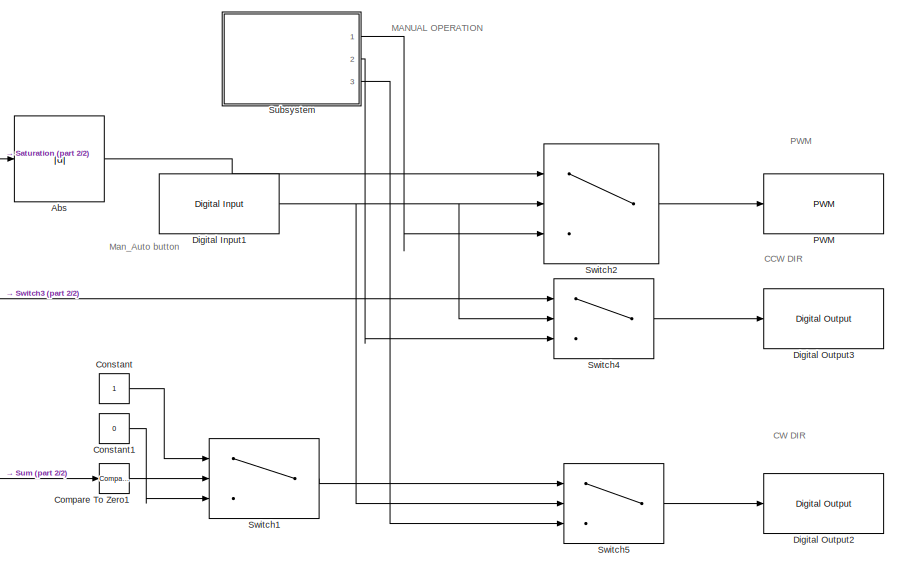
[diagram: root canvas - part 1/2, middle right region]
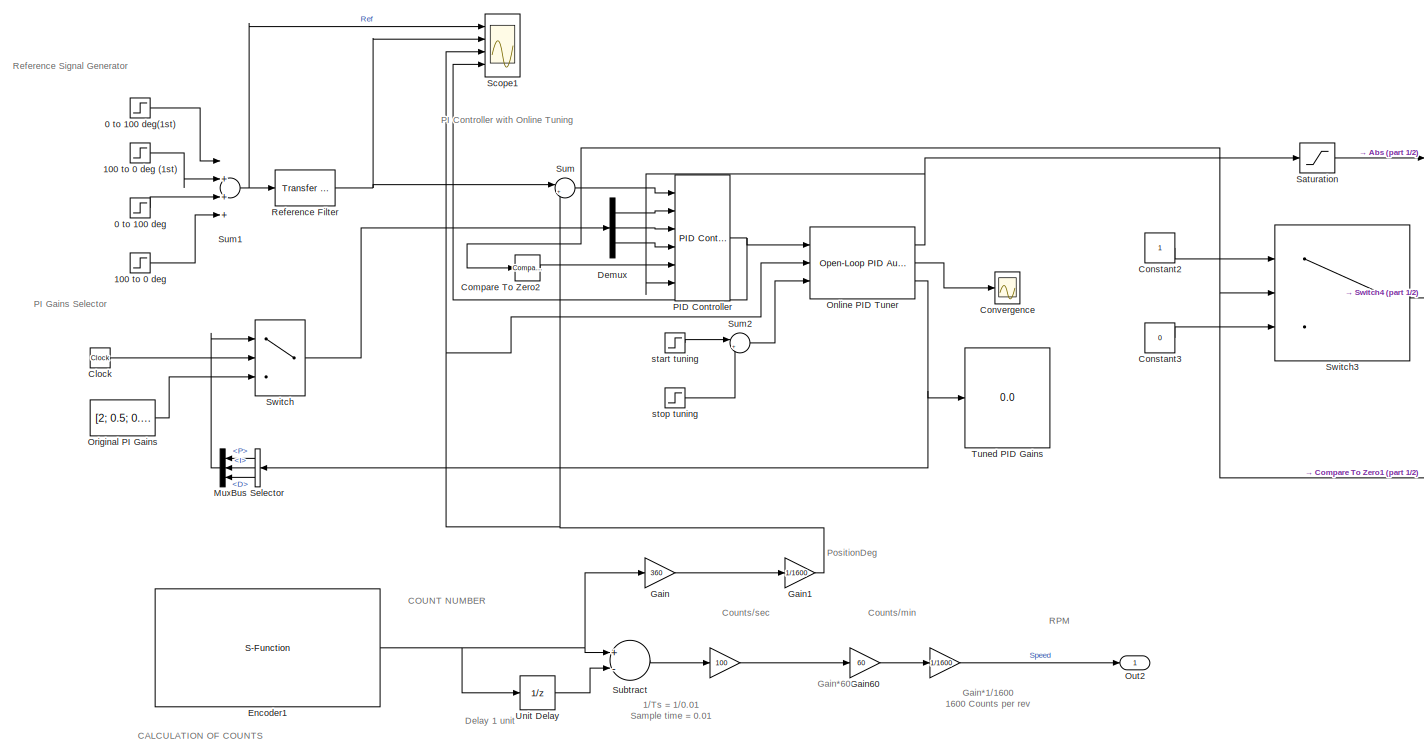
[diagram: root canvas - part 2/2, left side, full height]
MODEL slx_6c0a7374f1ec
KIND model
CONFIG AbsTol = auto
CONFIG EnableMultiTasking = off
CONFIG FixedStep = auto
CONFIG MaxStep = auto
CONFIG MinStep = auto
CONFIG RelTol = 1e-3
CONFIG SampleTimeConstraint = Unconstrained
CONFIG Solver = FixedStepAuto
CONFIG SolverName = FixedStepAuto
CONFIG StartTime = 0.0
CONFIG StopTime = 100
WORKSPACE source: MAT-file member
WORKSPACE p = [-7.82997288351e-05 0.181210895977 -0.072497134344 0.000486358314052 0.0361674637937]
BLOCK [Gain]  
  Gain = 1/1600
  OutDataTypeStr = double
  ParamDataTypeStr = Inherit: Inherit via internal rule
  SaturateOnIntegerOverflow = off
BLOCK [Step] 0 to 100 deg 
  After = 100
  SampleTime = 0
  Time = 60
BLOCK [Step] 0 to 100 deg(1st)
  After = 100
  SampleTime = 0
  Time = 2
BLOCK [Step] 100 to 0 deg
  After = -100
  SampleTime = 0
  Time = 80
BLOCK [Step] 100 to 0 deg (1st)
  After = -100
  SampleTime = 0
  Time = 20
BLOCK [Abs] Abs
  SaturateOnIntegerOverflow = off
BLOCK [BusSelector] Bus Selector
  OutputAsBus = off
  OutputSignals = P,I,D
  Ports = [1, 3]
BLOCK [Clock] Clock
BLOCK [Reference] Compare To Zero1  REF=simulink/Logic and Bit
Operations/Compare
To Zero
  Ports = [1, 1]
  SourceBlock = simulink/Logic and Bit\nOperations/Compare\nTo Zero
  SourceProductBaseCode = SL
  SourceProductName = Simulink
  SourceType = Compare To Zero
BLOCK [Reference] Compare To Zero2  REF=simulink/Logic and Bit
Operations/Compare
To Zero
  Ports = [1, 1]
  SourceBlock = simulink/Logic and Bit\nOperations/Compare\nTo Zero
  SourceProductBaseCode = SL
  SourceProductName = Simulink
  SourceType = Compare To Zero
BLOCK [Constant] Constant
BLOCK [Constant] Constant1
  Value = 0
BLOCK [Constant] Constant2
BLOCK [Constant] Constant3
  Value = 0
BLOCK [Scope] Convergence
  Floating = off
  NumInputPorts = 1
  Ports = [1]
  ScopeSpecificationString = Simulink.scopes.TimeScopeBlockCfg('CurrentConfiguration', extmgr.ConfigurationSet(extmgr.Configuration('Core','General UI',true),extmgr.Configuration('Core','Source UI',true),extmgr.Configuration('Sources','WiredSimulink',true),extmgr.Configuration('Visuals','Time Domain',true,'SerializedDisplays',{struct('MinYLimReal','-12.4989','MaxYLimReal','112.49007','YLabelReal','','MinYLimMag','0.00000','Ma...<+1373ch>
BLOCK [Demux] Demux
  DisplayOption = bar
  Outputs = 3
  Ports = [1, 3]
BLOCK [Reference] Digital Input1  REF=arduinolib/Digital Input
  Ports = [0, 1]
  SourceBlock = arduinolib/Digital Input
  SourceProductBaseCode = ARDUINO
  SourceProductName = Simulink Support Package for Arduino Hardware
  SourceType = Arduino Digital Input
BLOCK [Reference] Digital Output2  REF=arduinolib/Digital Output
  Ports = [1]
  SourceBlock = arduinolib/Digital Output
  SourceProductBaseCode = ARDUINO
  SourceProductName = Simulink Support Package for Arduino Hardware
  SourceType = Arduino Digital Output
BLOCK [Reference] Digital Output3  REF=arduinolib/Digital Output
  Ports = [1]
  SourceBlock = arduinolib/Digital Output
  SourceProductBaseCode = ARDUINO
  SourceProductName = Simulink Support Package for Arduino Hardware
  SourceType = Arduino Digital Output
BLOCK [S-Function] Encoder1
  CopyFcn = set_param(gcbh,'LinkStatus','none')
  EnableBusSupport = off
  FunctionName = sfcn_encoder
  InitFcn = try, set_param(gcb,'FunctionName','sfcn_encoder'), end
  OpenFcn = sfunctionwizard(gcbh)
  Parameters = uint8(0),uint8(2),uint8(3)
  Ports = [0, 1]
  PreSaveFcn = try, set_param(gcb,'FunctionName','sfcn_encoder'), end
  SFcnIsStateOwnerBlock = off
  SFunctionDeploymentMode = off
  SFunctionModules = sfcn_encoder_wrapper
BLOCK [Gain] Gain
  Gain = 360
  OutDataTypeStr = double
  ParamDataTypeStr = double
  SaturateOnIntegerOverflow = off
BLOCK [Gain] Gain1
  Gain = 1/1600
  OutDataTypeStr = double
  ParamDataTypeStr = double
  SaturateOnIntegerOverflow = off
BLOCK [Gain] Gain60
  Gain = 60
  OutDataTypeStr = double
  ParamDataTypeStr = Inherit: Inherit via internal rule
  SaturateOnIntegerOverflow = off
BLOCK [Mux] Mux
  DisplayOption = bar
  Inputs = 3
  Ports = [3, 1]
BLOCK [Reference] Online PID Tuner  REF=slctrlblks/Open-Loop PID Autotuner
  Ports = [3, 3]
  SourceBlock = slctrlblks/Open-Loop PID Autotuner
  SourceProductBaseCode = SD
  SourceProductName = Simulink Control Design
  SourceType = OnlinePIDTuner
BLOCK [Constant] Original PI Gains
  Value = [2; 0.5; 0.1]
BLOCK [Outport] Out2
  IconDisplay = Port number
  SignalName = speedRPM
BLOCK [Reference] PID Controller  REF=simulink/Continuous/PID Controller
  Ports = [6, 1]
  SourceBlock = simulink/Continuous/PID Controller
  SourceProductBaseCode = SL
  SourceProductName = Simulink
  SourceType = PID 1dof
  Tag = PID1
BLOCK [Reference] PWM  REF=arduinolib/PWM
  Ports = [1]
  SourceBlock = arduinolib/PWM
  SourceProductBaseCode = ARDUINO
  SourceProductName = Simulink Support Package for Arduino Hardware
  SourceType = Arduino PWM
BLOCK [Reference] Reference Filter  REF=simulink_extras/Additional
Linear/Transfer Fcn
(with initial outputs)
  Ports = [1, 1]
  SourceBlock = simulink_extras/Additional\nLinear/Transfer Fcn\n(with initial outputs)
  SourceProductBaseCode = SL
  SourceProductName = Simulink
  SourceType = Transfer Function with Initial Outputs
BLOCK [Saturate] Saturation
  InputPortMap = u0
  LowerLimit = -255
  Ports = [1, 1]
  UpperLimit = 255
BLOCK [Scope] Scope1
  Floating = off
  NumInputPorts = 4
  Ports = [4]
  ScopeSpecificationString = Simulink.scopes.TimeScopeBlockCfg('CurrentConfiguration', extmgr.ConfigurationSet(extmgr.Configuration('Core','General UI',true),extmgr.Configuration('Core','Source UI',true),extmgr.Configuration('Sources','WiredSimulink',true,'DataLoggingVariableName','ScopeData1'),extmgr.Configuration('Visuals','Time Domain',true,'SerializedDisplays',{struct('MinYLimReal','-713.03435','MaxYLimReal','362.55937','...<+1513ch>
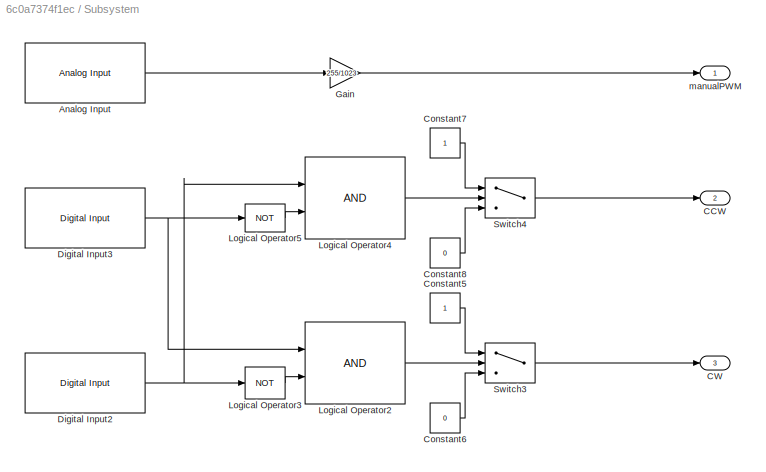
BLOCK [SubSystem] Subsystem
  Ports = [0, 3]
  RequestExecContextInheritance = off
BLOCK [Reference] Subsystem/Analog Input  REF=arduinolib/Analog Input
  Ports = [0, 1]
  SourceBlock = arduinolib/Analog Input
  SourceProductBaseCode = ARDUINO
  SourceProductName = Simulink Support Package for Arduino Hardware
  SourceType = Arduino Analog Input
BLOCK [Outport] Subsystem/CCW
  IconDisplay = Port number
  Port = 2
BLOCK [Outport] Subsystem/CW
  IconDisplay = Port number
  Port = 3
BLOCK [Constant] Subsystem/Constant5
BLOCK [Constant] Subsystem/Constant6
  Value = 0
BLOCK [Constant] Subsystem/Constant7
BLOCK [Constant] Subsystem/Constant8
  Value = 0
BLOCK [Reference] Subsystem/Digital Input2  REF=arduinolib/Digital Input
  Ports = [0, 1]
  SourceBlock = arduinolib/Digital Input
  SourceProductBaseCode = ARDUINO
  SourceProductName = Simulink Support Package for Arduino Hardware
  SourceType = Arduino Digital Input
BLOCK [Reference] Subsystem/Digital Input3  REF=arduinolib/Digital Input
  Ports = [0, 1]
  SourceBlock = arduinolib/Digital Input
  SourceProductBaseCode = ARDUINO
  SourceProductName = Simulink Support Package for Arduino Hardware
  SourceType = Arduino Digital Input
BLOCK [Gain] Subsystem/Gain
  Gain = 255/1023
  OutDataTypeStr = Inherit: Inherit via internal rule
  ParamDataTypeStr = Inherit: Inherit via internal rule
  SaturateOnIntegerOverflow = off
BLOCK [Logic] Subsystem/Logical Operator2
  AllPortsSameDT = off
  OutDataTypeStr = boolean
  Ports = [2, 1]
BLOCK [Logic] Subsystem/Logical Operator3
  AllPortsSameDT = off
  Operator = NOT
  OutDataTypeStr = boolean
  Ports = [1, 1]
BLOCK [Logic] Subsystem/Logical Operator4
  AllPortsSameDT = off
  OutDataTypeStr = boolean
  Ports = [2, 1]
BLOCK [Logic] Subsystem/Logical Operator5
  AllPortsSameDT = off
  Operator = NOT
  OutDataTypeStr = boolean
  Ports = [1, 1]
BLOCK [Switch] Subsystem/Switch3
  Criteria = u2 > Threshold
  InputSameDT = off
  SaturateOnIntegerOverflow = off
BLOCK [Switch] Subsystem/Switch4
  Criteria = u2 > Threshold
  InputSameDT = off
  SaturateOnIntegerOverflow = off
BLOCK [Outport] Subsystem/manualPWM
  IconDisplay = Port number
BLOCK [Sum] Subtract
  InputSameDT = off
  Inputs = +-
  OutDataTypeStr = Inherit: Inherit via internal rule
  Ports = [2, 1]
  SaturateOnIntegerOverflow = off
BLOCK [Sum] Sum
  IconShape = round
  InputSameDT = off
  Inputs = |+-
  OutDataTypeStr = Inherit: Inherit via internal rule
  Ports = [2, 1]
  SaturateOnIntegerOverflow = off
BLOCK [Sum] Sum1
  InputSameDT = off
  Inputs = |++++
  OutDataTypeStr = Inherit: Inherit via internal rule
  Ports = [4, 1]
  SaturateOnIntegerOverflow = off
BLOCK [Sum] Sum2
  IconShape = round
  InputSameDT = off
  Inputs = |++
  OutDataTypeStr = Inherit: Inherit via internal rule
  Ports = [2, 1]
  SaturateOnIntegerOverflow = off
BLOCK [Switch] Switch
  Criteria = u2 > Threshold
  InputSameDT = off
  SaturateOnIntegerOverflow = off
  Threshold = 66
BLOCK [Switch] Switch1
  Criteria = u2 > Threshold
  InputSameDT = off
  SaturateOnIntegerOverflow = off
BLOCK [Switch] Switch2
  Criteria = u2 > Threshold
  InputSameDT = off
  SaturateOnIntegerOverflow = off
BLOCK [Switch] Switch3
  Criteria = u2 > Threshold
  InputSameDT = off
  SaturateOnIntegerOverflow = off
BLOCK [Switch] Switch4
  Criteria = u2 > Threshold
  InputSameDT = off
  SaturateOnIntegerOverflow = off
BLOCK [Switch] Switch5
  Criteria = u2 > Threshold
  InputSameDT = off
  SaturateOnIntegerOverflow = off
BLOCK [Display] Tuned PID Gains
  Decimation = 1
  Ports = [1]
BLOCK [UnitDelay] Unit Delay
  HasFrameUpgradeWarning = on
  SampleTime = -1
BLOCK [Step] start tuning
  SampleTime = 0
  Time = 30
BLOCK [Step] stop tuning
  After = -1
  SampleTime = 0
  Time = 65
ANNOTATION (root): 1/Ts = 1/0.01 Sample time = 0.01
ANNOTATION (root): CALCULATION OF COUNTS
ANNOTATION (root): CCW DIR
ANNOTATION (root): COUNT NUMBER
ANNOTATION (root): CW DIR
ANNOTATION (root): Counts/min
ANNOTATION (root): Counts/sec
ANNOTATION (root): Delay 1 unit
ANNOTATION (root): Gain*1/1600 1600 Counts per rev
ANNOTATION (root): Gain*60
ANNOTATION (root): Man_Auto button
ANNOTATION (root): PWM
ANNOTATION (root): PositionDeg
ANNOTATION (root): RPM
ANNOTATION (root): MANUAL OPERATION
ANNOTATION (root): PI Controller with Online Tuning
ANNOTATION (root): PI Gains Selector
ANNOTATION (root): Reference Signal Generator
NET  :1 -> Gain60:1, Out2:1
LINE 0 to 100 deg :1 -> Sum1:3
LINE 0 to 100 deg(1st):1 -> Sum1:1
LINE 100 to 0 deg (1st):1 -> Sum1:2
LINE 100 to 0 deg:1 -> Sum1:4
LINE Abs:1 -> Switch2:1
LINE Bus Selector:1 -> Mux:1
LINE Bus Selector:2 -> Mux:2
LINE Bus Selector:3 -> Mux:3
LINE Clock:1 -> Switch:2
LINE Compare To Zero1:1 -> Switch1:2
LINE Compare To Zero2:1 -> PID Controller:5
LINE Constant1:1 -> Switch1:3
LINE Constant2:1 -> Switch3:1
LINE Constant3:1 -> Switch3:3
LINE Constant:1 -> Switch1:1
LINE Demux:1 -> PID Controller:2
LINE Demux:2 -> PID Controller:3
LINE Demux:3 -> PID Controller:4
NET Digital Input1:1 -> Switch2:2, Switch4:2, Switch5:2
NET Encoder1:1 -> Gain:1, Subtract:1, Unit Delay:1
NET Gain1:1 -> Online PID Tuner:2, Scope1:3, Sum:2
LINE Gain60:1 ->  :1
LINE Gain:1 -> Gain1:1
LINE Mux:1 -> Switch:1
NET Online PID Tuner:1 -> PID Controller:6, Saturation:1
LINE Online PID Tuner:2 -> Convergence:1
NET Online PID Tuner:3 -> Bus Selector:1, Tuned PID Gains:1
LINE Original PI Gains:1 -> Switch:3
NET PID Controller:1 -> Online PID Tuner:1, Scope1:4
NET Reference Filter:1 -> Scope1:2, Sum:1
LINE Saturation:1 -> Abs:1
LINE Subsystem/Analog Input:1 -> Subsystem/Gain:1
LINE Subsystem/Constant5:1 -> Subsystem/Switch3:1
LINE Subsystem/Constant6:1 -> Subsystem/Switch3:3
LINE Subsystem/Constant7:1 -> Subsystem/Switch4:1
LINE Subsystem/Constant8:1 -> Subsystem/Switch4:3
NET Subsystem/Digital Input2:1 -> Subsystem/Logical Operator3:1, Subsystem/Logical Operator4:1
NET Subsystem/Digital Input3:1 -> Subsystem/Logical Operator2:1, Subsystem/Logical Operator5:1
LINE Subsystem/Gain:1 -> Subsystem/manualPWM:1
LINE Subsystem/Logical Operator2:1 -> Subsystem/Switch3:2
LINE Subsystem/Logical Operator3:1 -> Subsystem/Logical Operator2:2
LINE Subsystem/Logical Operator4:1 -> Subsystem/Switch4:2
LINE Subsystem/Logical Operator5:1 -> Subsystem/Logical Operator4:2
LINE Subsystem/Switch3:1 -> Subsystem/CW:1
LINE Subsystem/Switch4:1 -> Subsystem/CCW:1
LINE Subsystem:1 -> Switch2:3
LINE Subsystem:2 -> Switch4:3
LINE Subsystem:3 -> Switch5:3
LINE Subtract:1 ->  :1
NET Sum1:1 -> Reference Filter:1, Scope1:1
LINE Sum2:1 -> Online PID Tuner:3
NET Sum:1 -> Compare To Zero1:1, Compare To Zero2:1, PID Controller:1, Switch3:2
LINE Switch1:1 -> Switch5:1
LINE Switch2:1 -> PWM:1
LINE Switch3:1 -> Switch4:1
LINE Switch4:1 -> Digital Output3:1
LINE Switch5:1 -> Digital Output2:1
LINE Switch:1 -> Demux:1
LINE Unit Delay:1 -> Subtract:2
LINE start tuning:1 -> Sum2:1
LINE stop tuning:1 -> Sum2:2
note: NET lines group one-source signal fan-out (src -> all destinations, sorted); 1:1 wires keep LINE
